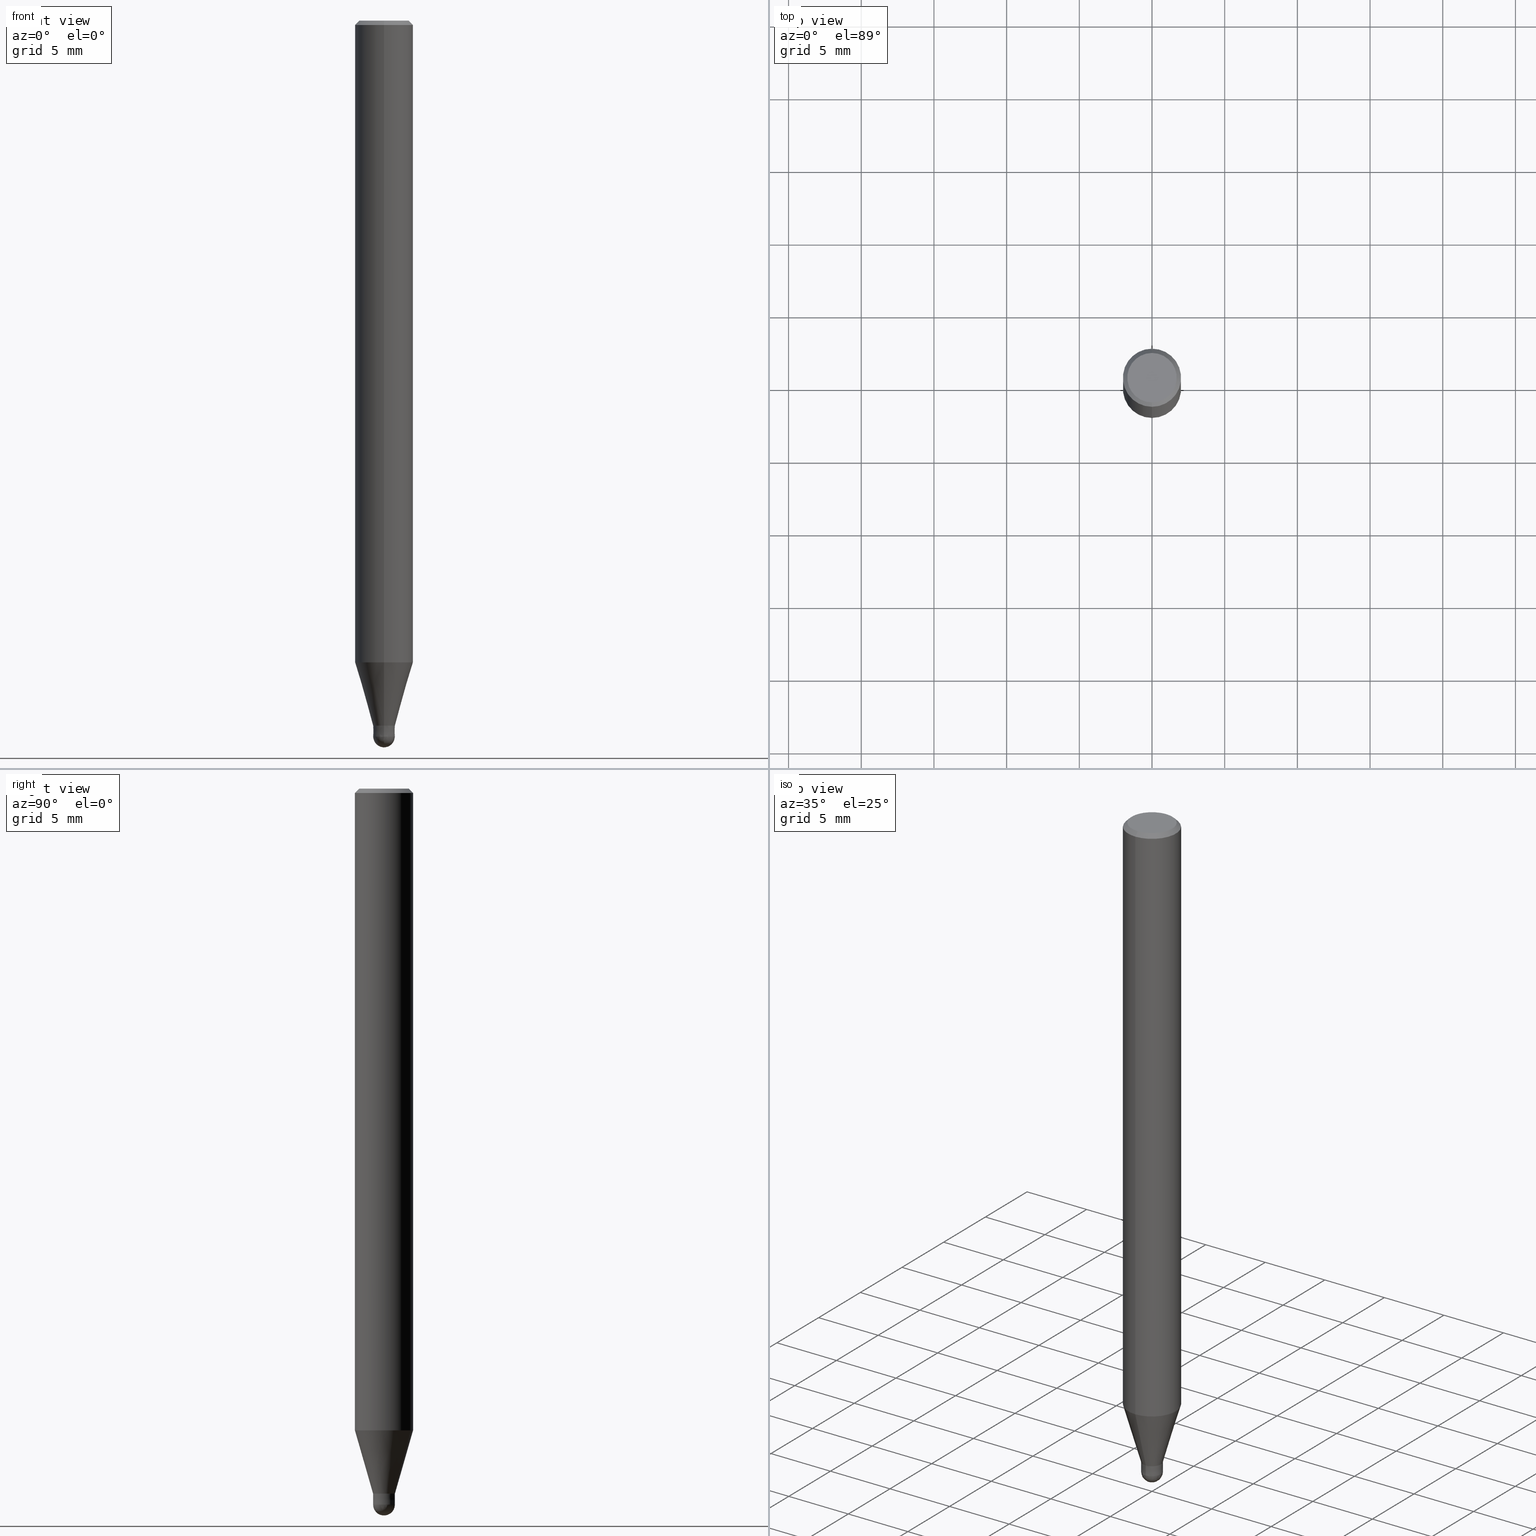
[diagram: canonical four-view strip — front | top / right | iso, engineering-drawing reading convention]
A machine part, canonical four-view strip (front | top / right | iso — engineering-drawing reading convention). The complete STEP part file that produces these views, byte-faithful:
ISO-10303-21;
HEADER;
FILE_DESCRIPTION(('no description'),'unknown implementation level');
FILE_NAME('HSB2015-0150-Huellk.stp','  ',('CIMSOURCE GmbH'),('CADClick - KiM GmbH - www.kimweb.de'),'unknown preprocess','ACIS','unknown authorization');
FILE_SCHEMA(('automotive_design'));
ENDSEC;
DATA;
#1=MECHANICAL_DESIGN_GEOMETRIC_PRESENTATION_REPRESENTATION(' ',(#14,#15,#16,#17,#18,#19,#20,#21,#22,#23,#24,#25,#26,#27,#28,#29,#30,#31,#32,#33,#34,#35,#36,#37,#38,#39,#40,#41,#42,#43,#44,#45,#46,#47,#48,#49,#50,#51,#52,#53,#54,#55,#56,#57,#58,#59,#60,#61,#62,#63,#64,#65,#66),#10);
#2=PRODUCT_DEFINITION_CONTEXT('',#67,'design');
#3=APPLICATION_PROTOCOL_DEFINITION('INTERNATIONAL STANDARD','automotive_design',1994,#67);
#4=PRODUCT_CATEGORY_RELATIONSHIP('NONE','NONE',#68,#69);
#5=SHAPE_DEFINITION_REPRESENTATION(#70,#71);
#6=PRODUCT_DEFINITION_CONTEXT('',#72,'design');
#7=APPLICATION_PROTOCOL_DEFINITION('INTERNATIONAL STANDARD','automotive_design',1994,#72);
#8=PRODUCT_CATEGORY_RELATIONSHIP('NONE','NONE',#73,#74);
#9=SHAPE_DEFINITION_REPRESENTATION(#75,#76);
#10= (GEOMETRIC_REPRESENTATION_CONTEXT(3)GLOBAL_UNCERTAINTY_ASSIGNED_CONTEXT((#79))GLOBAL_UNIT_ASSIGNED_CONTEXT((#81,#82,#83))REPRESENTATION_CONTEXT('NONE','WORKSPACE'));
#14=STYLED_ITEM('',(#85),#86);
#15=STYLED_ITEM('',(#87),#88);
#16=STYLED_ITEM('',(#89),#90);
#17=STYLED_ITEM('',(#91),#92);
#18=STYLED_ITEM('',(#93),#94);
#19=STYLED_ITEM('',(#95),#96);
#20=STYLED_ITEM('',(#97),#98);
#21=STYLED_ITEM('',(#99),#100);
#22=STYLED_ITEM('',(#101),#102);
#23=STYLED_ITEM('',(#103),#104);
#24=STYLED_ITEM('',(#105),#106);
#25=STYLED_ITEM('',(#107),#108);
#26=STYLED_ITEM('',(#109),#110);
#27=STYLED_ITEM('',(#111),#112);
#28=STYLED_ITEM('',(#113),#114);
#29=STYLED_ITEM('',(#115),#116);
#30=STYLED_ITEM('',(#117),#118);
#31=STYLED_ITEM('',(#119),#120);
#32=STYLED_ITEM('',(#121),#122);
#33=STYLED_ITEM('',(#123),#124);
#34=STYLED_ITEM('',(#125),#126);
#35=STYLED_ITEM('',(#127),#128);
#36=STYLED_ITEM('',(#129),#130);
#37=STYLED_ITEM('',(#131),#132);
#38=STYLED_ITEM('',(#133),#134);
#39=STYLED_ITEM('',(#135),#136);
#40=STYLED_ITEM('',(#137),#138);
#41=STYLED_ITEM('',(#139),#140);
#42=STYLED_ITEM('',(#141),#142);
#43=STYLED_ITEM('',(#143),#144);
#44=STYLED_ITEM('',(#145),#146);
#45=STYLED_ITEM('',(#147),#148);
#46=STYLED_ITEM('',(#149),#150);
#47=STYLED_ITEM('',(#151),#152);
#48=STYLED_ITEM('',(#153),#154);
#49=STYLED_ITEM('',(#155),#156);
#50=STYLED_ITEM('',(#157),#158);
#51=STYLED_ITEM('',(#159),#160);
#52=STYLED_ITEM('',(#161),#162);
#53=STYLED_ITEM('',(#163),#164);
#54=STYLED_ITEM('',(#165),#166);
#55=STYLED_ITEM('',(#167),#168);
#56=STYLED_ITEM('',(#169),#170);
#57=STYLED_ITEM('',(#171),#172);
#58=STYLED_ITEM('',(#173),#174);
#59=STYLED_ITEM('',(#175),#176);
#60=STYLED_ITEM('',(#177),#178);
#61=STYLED_ITEM('',(#179),#180);
#62=STYLED_ITEM('',(#181),#182);
#63=STYLED_ITEM('',(#183),#184);
#64=STYLED_ITEM('',(#185),#186);
#65=STYLED_ITEM('',(#187),#188);
#66=STYLED_ITEM('',(#189),#190);
#67=APPLICATION_CONTEXT(' ');
#68=PRODUCT_CATEGORY('part','NONE');
#69=PRODUCT_RELATED_PRODUCT_CATEGORY('detail',' ',(#191));
#70=PRODUCT_DEFINITION_SHAPE('NONE','NONE',#192);
#71=ADVANCED_BREP_SHAPE_REPRESENTATION('1',(#164,#193),#10);
#72=APPLICATION_CONTEXT(' ');
#73=PRODUCT_CATEGORY('part','NONE');
#74=PRODUCT_RELATED_PRODUCT_CATEGORY('detail',' ',(#194));
#75=PRODUCT_DEFINITION_SHAPE('NONE','NONE',#195);
#76=ADVANCED_BREP_SHAPE_REPRESENTATION('2',(#138,#196),#10);
#79=UNCERTAINTY_MEASURE_WITH_UNIT(LENGTH_MEASURE(1.0E-006),#81,'','');
#81= (CONVERSION_BASED_UNIT('MILLIMETRE',#199)LENGTH_UNIT()NAMED_UNIT(#202));
#82= (NAMED_UNIT(#204)PLANE_ANGLE_UNIT()SI_UNIT($,.RADIAN.));
#83= (NAMED_UNIT(#204)SOLID_ANGLE_UNIT()SI_UNIT($,.STERADIAN.));
#85=PRESENTATION_STYLE_ASSIGNMENT((#210));
#86=EDGE_CURVE('',#126,#156,#211,.T.);
#87=PRESENTATION_STYLE_ASSIGNMENT((#212));
#88=ADVANCED_FACE('',(#213),#214,.T.);
#89=PRESENTATION_STYLE_ASSIGNMENT((#215));
#90=ADVANCED_FACE('',(#216),#217,.T.);
#91=PRESENTATION_STYLE_ASSIGNMENT((#218));
#92=EDGE_CURVE('',#174,#120,#219,.T.);
#93=PRESENTATION_STYLE_ASSIGNMENT((#220));
#94=ADVANCED_FACE('',(#221),#222,.T.);
#95=PRESENTATION_STYLE_ASSIGNMENT((#223));
#96=EDGE_CURVE('',#100,#166,#224,.T.);
#97=PRESENTATION_STYLE_ASSIGNMENT((#225));
#98=EDGE_CURVE('',#100,#154,#226,.T.);
#99=PRESENTATION_STYLE_ASSIGNMENT((#227));
#100=VERTEX_POINT('',#228);
#101=PRESENTATION_STYLE_ASSIGNMENT((#229));
#102=EDGE_CURVE('',#166,#184,#230,.T.);
#103=PRESENTATION_STYLE_ASSIGNMENT((#231));
#104=EDGE_CURVE('',#154,#100,#232,.T.);
#105=PRESENTATION_STYLE_ASSIGNMENT((#233));
#106=ADVANCED_FACE('',(#234),#235,.T.);
#107=PRESENTATION_STYLE_ASSIGNMENT((#236));
#108=EDGE_CURVE('',#174,#156,#237,.T.);
#109=PRESENTATION_STYLE_ASSIGNMENT((#238));
#110=EDGE_CURVE('',#130,#158,#239,.T.);
#111=PRESENTATION_STYLE_ASSIGNMENT((#240));
#112=ADVANCED_FACE('',(#241),#242,.T.);
#113=PRESENTATION_STYLE_ASSIGNMENT((#243));
#114=EDGE_CURVE('',#188,#152,#244,.T.);
#115=PRESENTATION_STYLE_ASSIGNMENT((#245));
#116=EDGE_CURVE('',#126,#120,#246,.T.);
#117=PRESENTATION_STYLE_ASSIGNMENT((#247));
#118=EDGE_CURVE('',#158,#130,#248,.T.);
#119=PRESENTATION_STYLE_ASSIGNMENT((#249));
#120=VERTEX_POINT('',#250);
#121=PRESENTATION_STYLE_ASSIGNMENT((#251));
#122=VERTEX_POINT('',#252);
#123=PRESENTATION_STYLE_ASSIGNMENT((#253));
#124=EDGE_CURVE('',#184,#154,#254,.T.);
#125=PRESENTATION_STYLE_ASSIGNMENT((#255));
#126=VERTEX_POINT('',#256);
#127=PRESENTATION_STYLE_ASSIGNMENT((#257));
#128=EDGE_CURVE('',#152,#188,#258,.T.);
#129=PRESENTATION_STYLE_ASSIGNMENT((#259));
#130=VERTEX_POINT('',#260);
#131=PRESENTATION_STYLE_ASSIGNMENT((#261));
#132=ADVANCED_FACE('',(#262),#263,.T.);
#133=PRESENTATION_STYLE_ASSIGNMENT((#264));
#134=ADVANCED_FACE('',(#265),#266,.T.);
#135=PRESENTATION_STYLE_ASSIGNMENT((#267));
#136=EDGE_CURVE('',#152,#142,#268,.T.);
#137=PRESENTATION_STYLE_ASSIGNMENT((#269));
#138=MANIFOLD_SOLID_BREP('2',#270);
#139=PRESENTATION_STYLE_ASSIGNMENT((#271));
#140=EDGE_CURVE('',#142,#122,#272,.T.);
#141=PRESENTATION_STYLE_ASSIGNMENT((#273));
#142=VERTEX_POINT('',#274);
#143=PRESENTATION_STYLE_ASSIGNMENT((#275));
#144=ADVANCED_FACE('',(#276),#277,.T.);
#145=PRESENTATION_STYLE_ASSIGNMENT((#278));
#146=EDGE_CURVE('',#130,#126,#279,.T.);
#147=PRESENTATION_STYLE_ASSIGNMENT((#280));
#148=EDGE_CURVE('',#120,#174,#281,.T.);
#149=PRESENTATION_STYLE_ASSIGNMENT((#282));
#150=ADVANCED_FACE('',(#283),#284,.T.);
#151=PRESENTATION_STYLE_ASSIGNMENT((#285));
#152=VERTEX_POINT('',#286);
#153=PRESENTATION_STYLE_ASSIGNMENT((#287));
#154=VERTEX_POINT('',#288);
#155=PRESENTATION_STYLE_ASSIGNMENT((#289));
#156=VERTEX_POINT('',#290);
#157=PRESENTATION_STYLE_ASSIGNMENT((#291));
#158=VERTEX_POINT('',#292);
#159=PRESENTATION_STYLE_ASSIGNMENT((#293));
#160=EDGE_CURVE('',#156,#126,#294,.T.);
#161=PRESENTATION_STYLE_ASSIGNMENT((#295));
#162=EDGE_CURVE('',#184,#166,#296,.T.);
#163=PRESENTATION_STYLE_ASSIGNMENT((#297));
#164=MANIFOLD_SOLID_BREP('1',#298);
#165=PRESENTATION_STYLE_ASSIGNMENT((#299));
#166=VERTEX_POINT('',#300);
#167=PRESENTATION_STYLE_ASSIGNMENT((#301));
#168=ADVANCED_FACE('',(#302),#303,.T.);
#169=PRESENTATION_STYLE_ASSIGNMENT((#304));
#170=EDGE_CURVE('',#122,#188,#305,.T.);
#171=PRESENTATION_STYLE_ASSIGNMENT((#306));
#172=ADVANCED_FACE('',(#307),#308,.T.);
#173=PRESENTATION_STYLE_ASSIGNMENT((#309));
#174=VERTEX_POINT('',#310);
#175=PRESENTATION_STYLE_ASSIGNMENT((#311));
#176=ADVANCED_FACE('',(#312),#313,.T.);
#177=PRESENTATION_STYLE_ASSIGNMENT((#314));
#178=ADVANCED_FACE('',(#315),#316,.T.);
#179=PRESENTATION_STYLE_ASSIGNMENT((#317));
#180=EDGE_CURVE('',#156,#158,#318,.T.);
#181=PRESENTATION_STYLE_ASSIGNMENT((#319));
#182=EDGE_CURVE('',#122,#142,#320,.T.);
#183=PRESENTATION_STYLE_ASSIGNMENT((#321));
#184=VERTEX_POINT('',#322);
#185=PRESENTATION_STYLE_ASSIGNMENT((#323));
#186=ADVANCED_FACE('',(#324,#325),#326,.T.);
#187=PRESENTATION_STYLE_ASSIGNMENT((#327));
#188=VERTEX_POINT('',#328);
#189=PRESENTATION_STYLE_ASSIGNMENT((#329));
#190=EDGE_CURVE('',#122,#142,#330,.T.);
#191=PRODUCT('1','1','PART-1-DESC',(#331));
#192=PRODUCT_DEFINITION('NONE','NONE',#332,#2);
#193=AXIS2_PLACEMENT_3D('',#333,#334,#335);
#194=PRODUCT('2','2','PART-2-DESC',(#336));
#195=PRODUCT_DEFINITION('NONE','NONE',#337,#6);
#196=AXIS2_PLACEMENT_3D('',#338,#339,#340);
#199=LENGTH_MEASURE_WITH_UNIT(LENGTH_MEASURE(1.0),#341);
#202=DIMENSIONAL_EXPONENTS(1.0,0.0,0.0,0.0,0.0,0.0,0.0);
#204=DIMENSIONAL_EXPONENTS(0.0,0.0,0.0,0.0,0.0,0.0,0.0);
#210=CURVE_STYLE('',#342,POSITIVE_LENGTH_MEASURE(1.0E-006),#343);
#211=CIRCLE('',#344,2.0);
#212=SURFACE_STYLE_USAGE(.BOTH.,#345);
#213=FACE_OUTER_BOUND('',#346,.T.);
#214=CYLINDRICAL_SURFACE('',#347,2.0);
#215=SURFACE_STYLE_USAGE(.BOTH.,#348);
#216=FACE_OUTER_BOUND('',#349,.T.);
#217=CONICAL_SURFACE('',#350,1.37495,0.279268973819818);
#218=CURVE_STYLE('',#351,POSITIVE_LENGTH_MEASURE(1.0E-006),#352);
#219=CIRCLE('',#353,1.7);
#220=SURFACE_STYLE_USAGE(.BOTH.,#354);
#221=FACE_OUTER_BOUND('',#355,.T.);
#222=PLANE('',#356);
#223=CURVE_STYLE('',#357,POSITIVE_LENGTH_MEASURE(1.0E-006),#358);
#224=LINE('',#359,#360);
#225=CURVE_STYLE('',#361,POSITIVE_LENGTH_MEASURE(1.0E-006),#362);
#226=CIRCLE('',#363,1.99995);
#227=POINT_STYLE(' ',#364,POSITIVE_LENGTH_MEASURE(1.0E-006),#365);
#228=CARTESIAN_POINT('',(0.0,1.99995,-44.141));
#229=CURVE_STYLE('',#366,POSITIVE_LENGTH_MEASURE(1.0E-006),#367);
#230=CIRCLE('',#368,0.74995);
#231=CURVE_STYLE('',#369,POSITIVE_LENGTH_MEASURE(1.0E-006),#370);
#232=CIRCLE('',#371,1.99995);
#233=SURFACE_STYLE_USAGE(.BOTH.,#372);
#234=FACE_OUTER_BOUND('',#373,.T.);
#235=SPHERICAL_SURFACE('',#374,0.750000000000001);
#236=CURVE_STYLE('',#375,POSITIVE_LENGTH_MEASURE(1.0E-006),#376);
#237=LINE('',#377,#378);
#238=CURVE_STYLE('',#379,POSITIVE_LENGTH_MEASURE(1.0E-006),#380);
#239=CIRCLE('',#381,2.0);
#240=SURFACE_STYLE_USAGE(.BOTH.,#382);
#241=FACE_OUTER_BOUND('',#383,.T.);
#242=PLANE('',#384);
#243=CURVE_STYLE('',#385,POSITIVE_LENGTH_MEASURE(1.0E-006),#386);
#244=CIRCLE('',#387,0.7499);
#245=CURVE_STYLE('',#388,POSITIVE_LENGTH_MEASURE(1.0E-006),#389);
#246=LINE('',#390,#391);
#247=CURVE_STYLE('',#392,POSITIVE_LENGTH_MEASURE(1.0E-006),#393);
#248=CIRCLE('',#394,2.0);
#249=POINT_STYLE(' ',#395,POSITIVE_LENGTH_MEASURE(1.0E-006),#396);
#250=CARTESIAN_POINT('',(2.08183080149804E-016,-1.7,0.0));
#251=POINT_STYLE(' ',#397,POSITIVE_LENGTH_MEASURE(1.0E-006),#398);
#252=CARTESIAN_POINT('',(9.18454765366783E-017,-0.75,-49.25));
#253=CURVE_STYLE('',#399,POSITIVE_LENGTH_MEASURE(1.0E-006),#400);
#254=LINE('',#401,#402);
#255=POINT_STYLE(' ',#403,POSITIVE_LENGTH_MEASURE(1.0E-006),#404);
#256=CARTESIAN_POINT('',(2.44921270764475E-016,-2.0,-0.299999999999997));
#257=CURVE_STYLE('',#405,POSITIVE_LENGTH_MEASURE(1.0E-006),#406);
#258=CIRCLE('',#407,0.7499);
#259=POINT_STYLE(' ',#408,POSITIVE_LENGTH_MEASURE(1.0E-006),#409);
#260=CARTESIAN_POINT('',(2.44921270764475E-016,-2.0,-44.141));
#261=SURFACE_STYLE_USAGE(.BOTH.,#410);
#262=FACE_OUTER_BOUND('',#411,.T.);
#263=CYLINDRICAL_SURFACE('',#412,2.0);
#264=SURFACE_STYLE_USAGE(.BOTH.,#413);
#265=FACE_OUTER_BOUND('',#414,.T.);
#266=CONICAL_SURFACE('',#415,1.85,0.785398163397453);
#267=CURVE_STYLE('',#416,POSITIVE_LENGTH_MEASURE(1.0E-006),#417);
#268=LINE('',#418,#419);
#269=SURFACE_STYLE_USAGE(.BOTH.,#420);
#270=CLOSED_SHELL('',(#106,#178,#94,#168,#144));
#271=CURVE_STYLE('',#421,POSITIVE_LENGTH_MEASURE(1.0E-006),#422);
#272=CIRCLE('',#423,0.75);
#273=POINT_STYLE(' ',#424,POSITIVE_LENGTH_MEASURE(1.0E-006),#425);
#274=CARTESIAN_POINT('',(0.0,0.75,-49.25));
#275=SURFACE_STYLE_USAGE(.BOTH.,#426);
#276=FACE_OUTER_BOUND('',#427,.T.);
#277=SPHERICAL_SURFACE('',#428,0.750000000000001);
#278=CURVE_STYLE('',#429,POSITIVE_LENGTH_MEASURE(1.0E-006),#430);
#279=LINE('',#431,#432);
#280=CURVE_STYLE('',#433,POSITIVE_LENGTH_MEASURE(1.0E-006),#434);
#281=CIRCLE('',#435,1.7);
#282=SURFACE_STYLE_USAGE(.BOTH.,#436);
#283=FACE_OUTER_BOUND('',#437,.T.);
#284=CONICAL_SURFACE('',#438,1.85,0.785398163397453);
#285=POINT_STYLE(' ',#439,POSITIVE_LENGTH_MEASURE(1.0E-006),#440);
#286=CARTESIAN_POINT('',(0.0,0.7499,-48.5));
#287=POINT_STYLE(' ',#441,POSITIVE_LENGTH_MEASURE(1.0E-006),#442);
#288=CARTESIAN_POINT('',(2.44915147732706E-016,-1.99995,-44.141));
#289=POINT_STYLE(' ',#443,POSITIVE_LENGTH_MEASURE(1.0E-006),#444);
#290=CARTESIAN_POINT('',(0.0,2.0,-0.299999999999997));
#291=POINT_STYLE(' ',#445,POSITIVE_LENGTH_MEASURE(1.0E-006),#446);
#292=CARTESIAN_POINT('',(0.0,2.0,-44.141));
#293=CURVE_STYLE('',#447,POSITIVE_LENGTH_MEASURE(1.0E-006),#448);
#294=CIRCLE('',#449,2.0);
#295=CURVE_STYLE('',#450,POSITIVE_LENGTH_MEASURE(1.0E-006),#451);
#296=CIRCLE('',#452,0.74995);
#297=SURFACE_STYLE_USAGE(.BOTH.,#453);
#298=CLOSED_SHELL('',(#172,#132,#150,#186,#176,#134,#88,#90,#112));
#299=POINT_STYLE(' ',#454,POSITIVE_LENGTH_MEASURE(1.0E-006),#455);
#300=CARTESIAN_POINT('',(0.0,0.74995,-48.5));
#301=SURFACE_STYLE_USAGE(.BOTH.,#456);
#302=FACE_OUTER_BOUND('',#457,.T.);
#303=CONICAL_SURFACE('',#458,0.74995,0.000133333332543343);
#304=CURVE_STYLE('',#459,POSITIVE_LENGTH_MEASURE(1.0E-006),#460);
#305=LINE('',#461,#462);
#306=SURFACE_STYLE_USAGE(.BOTH.,#463);
#307=FACE_OUTER_BOUND('',#464,.T.);
#308=CONICAL_SURFACE('',#465,1.37495,0.279268973819818);
#309=POINT_STYLE(' ',#466,POSITIVE_LENGTH_MEASURE(1.0E-006),#467);
#310=CARTESIAN_POINT('',(0.0,1.7,0.0));
#311=SURFACE_STYLE_USAGE(.BOTH.,#468);
#312=FACE_OUTER_BOUND('',#469,.T.);
#313=PLANE('',#470);
#314=SURFACE_STYLE_USAGE(.BOTH.,#471);
#315=FACE_OUTER_BOUND('',#472,.T.);
#316=CONICAL_SURFACE('',#473,0.74995,0.000133333332543343);
#317=CURVE_STYLE('',#474,POSITIVE_LENGTH_MEASURE(1.0E-006),#475);
#318=LINE('',#476,#477);
#319=CURVE_STYLE('',#478,POSITIVE_LENGTH_MEASURE(1.0E-006),#479);
#320=CIRCLE('',#480,0.750000000000001);
#321=POINT_STYLE(' ',#481,POSITIVE_LENGTH_MEASURE(1.0E-006),#482);
#322=CARTESIAN_POINT('',(9.18393535049092E-017,-0.74995,-48.5));
#323=SURFACE_STYLE_USAGE(.BOTH.,#483);
#324=FACE_OUTER_BOUND('',#484,.T.);
#325=FACE_BOUND('',#485,.T.);
#326=PLANE('',#486);
#327=POINT_STYLE(' ',#487,POSITIVE_LENGTH_MEASURE(1.0E-006),#488);
#328=CARTESIAN_POINT('',(9.18332304731401E-017,-0.7499,-48.5));
#329=CURVE_STYLE('',#489,POSITIVE_LENGTH_MEASURE(1.0E-006),#490);
#330=CIRCLE('',#491,0.75);
#331=PRODUCT_CONTEXT('',#67,'mechanical');
#332=PRODUCT_DEFINITION_FORMATION_WITH_SPECIFIED_SOURCE(' ','NONE',#191,.NOT_KNOWN.);
#333=CARTESIAN_POINT('',(0.0,0.0,0.0));
#334=DIRECTION('',(0.0,0.0,1.0));
#335=DIRECTION('',(1.0,0.0,0.0));
#336=PRODUCT_CONTEXT('',#72,'mechanical');
#337=PRODUCT_DEFINITION_FORMATION_WITH_SPECIFIED_SOURCE(' ','NONE',#194,.NOT_KNOWN.);
#338=CARTESIAN_POINT('',(0.0,0.0,0.0));
#339=DIRECTION('',(0.0,0.0,1.0));
#340=DIRECTION('',(1.0,0.0,0.0));
#341= (NAMED_UNIT(#202)LENGTH_UNIT()SI_UNIT(.MILLI.,.METRE.));
#342=DRAUGHTING_PRE_DEFINED_CURVE_FONT('continuous');
#343=COLOUR_RGB('',0.498039215803146,0.498039215803146,0.498039215803146);
#344=AXIS2_PLACEMENT_3D('',#493,#494,#495);
#345=SURFACE_SIDE_STYLE('',(#496));
#346=EDGE_LOOP('',(#497,#498,#499,#500));
#347=AXIS2_PLACEMENT_3D('',#501,#502,#503);
#348=SURFACE_SIDE_STYLE('',(#504));
#349=EDGE_LOOP('',(#505,#506,#507,#508));
#350=AXIS2_PLACEMENT_3D('',#509,#510,#511);
#351=DRAUGHTING_PRE_DEFINED_CURVE_FONT('continuous');
#352=COLOUR_RGB('',0.498039215803146,0.498039215803146,0.498039215803146);
#353=AXIS2_PLACEMENT_3D('',#512,#513,#514);
#354=SURFACE_SIDE_STYLE('',(#515));
#355=EDGE_LOOP('',(#516,#517));
#356=AXIS2_PLACEMENT_3D('',#518,#519,#520);
#357=DRAUGHTING_PRE_DEFINED_CURVE_FONT('continuous');
#358=COLOUR_RGB('',0.498039215803146,0.498039215803146,0.498039215803146);
#359=CARTESIAN_POINT('',(-1.68377250618808E-016,1.37495,-46.3205));
#360=VECTOR('',#521,1.0);
#361=DRAUGHTING_PRE_DEFINED_CURVE_FONT('continuous');
#362=COLOUR_RGB('',0.498039215803146,0.498039215803146,0.498039215803146);
#363=AXIS2_PLACEMENT_3D('',#522,#523,#524);
#364=PRE_DEFINED_MARKER('');
#365=COLOUR_RGB('',0.498039215803146,0.498039215803146,0.498039215803146);
#366=DRAUGHTING_PRE_DEFINED_CURVE_FONT('continuous');
#367=COLOUR_RGB('',0.498039215803146,0.498039215803146,0.498039215803146);
#368=AXIS2_PLACEMENT_3D('',#525,#526,#527);
#369=DRAUGHTING_PRE_DEFINED_CURVE_FONT('continuous');
#370=COLOUR_RGB('',0.498039215803146,0.498039215803146,0.498039215803146);
#371=AXIS2_PLACEMENT_3D('',#528,#529,#530);
#372=SURFACE_SIDE_STYLE('',(#531));
#373=EDGE_LOOP('',(#532,#533));
#374=AXIS2_PLACEMENT_3D('',#534,#535,#536);
#375=DRAUGHTING_PRE_DEFINED_CURVE_FONT('continuous');
#376=COLOUR_RGB('',0.498039215803146,0.498039215803146,0.498039215803146);
#377=CARTESIAN_POINT('',(-2.2655217545714E-016,1.85,-0.149999999999999));
#378=VECTOR('',#537,1.0);
#379=DRAUGHTING_PRE_DEFINED_CURVE_FONT('continuous');
#380=COLOUR_RGB('',0.498039215803146,0.498039215803146,0.498039215803146);
#381=AXIS2_PLACEMENT_3D('',#538,#539,#540);
#382=SURFACE_SIDE_STYLE('',(#541));
#383=EDGE_LOOP('',(#542,#543));
#384=AXIS2_PLACEMENT_3D('',#544,#545,#546);
#385=DRAUGHTING_PRE_DEFINED_CURVE_FONT('continuous');
#386=COLOUR_RGB('',0.800000011920929,0.800000011920929,0.800000011920929);
#387=AXIS2_PLACEMENT_3D('',#547,#548,#549);
#388=DRAUGHTING_PRE_DEFINED_CURVE_FONT('continuous');
#389=COLOUR_RGB('',0.498039215803146,0.498039215803146,0.498039215803146);
#390=CARTESIAN_POINT('',(2.2655217545714E-016,-1.85,-0.149999999999999));
#391=VECTOR('',#550,1.0);
#392=DRAUGHTING_PRE_DEFINED_CURVE_FONT('continuous');
#393=COLOUR_RGB('',0.498039215803146,0.498039215803146,0.498039215803146);
#394=AXIS2_PLACEMENT_3D('',#551,#552,#553);
#395=PRE_DEFINED_MARKER('');
#396=COLOUR_RGB('',0.498039215803146,0.498039215803146,0.498039215803146);
#397=PRE_DEFINED_MARKER('');
#398=COLOUR_RGB('',0.800000011920929,0.800000011920929,0.800000011920929);
#399=DRAUGHTING_PRE_DEFINED_CURVE_FONT('continuous');
#400=COLOUR_RGB('',0.498039215803146,0.498039215803146,0.498039215803146);
#401=CARTESIAN_POINT('',(1.68377250618808E-016,-1.37495,-46.3205));
#402=VECTOR('',#554,1.0);
#403=PRE_DEFINED_MARKER('');
#404=COLOUR_RGB('',0.498039215803146,0.498039215803146,0.498039215803146);
#405=DRAUGHTING_PRE_DEFINED_CURVE_FONT('continuous');
#406=COLOUR_RGB('',0.800000011920929,0.800000011920929,0.800000011920929);
#407=AXIS2_PLACEMENT_3D('',#555,#556,#557);
#408=PRE_DEFINED_MARKER('');
#409=COLOUR_RGB('',0.498039215803146,0.498039215803146,0.498039215803146);
#410=SURFACE_SIDE_STYLE('',(#558));
#411=EDGE_LOOP('',(#559,#560,#561,#562));
#412=AXIS2_PLACEMENT_3D('',#563,#564,#565);
#413=SURFACE_SIDE_STYLE('',(#566));
#414=EDGE_LOOP('',(#567,#568,#569,#570));
#415=AXIS2_PLACEMENT_3D('',#571,#572,#573);
#416=DRAUGHTING_PRE_DEFINED_CURVE_FONT('continuous');
#417=COLOUR_RGB('',0.800000011920929,0.800000011920929,0.800000011920929);
#418=CARTESIAN_POINT('',(-9.18393535049091E-017,0.74995,-48.875));
#419=VECTOR('',#574,1.0);
#420=SURFACE_SIDE_STYLE('',(#575));
#421=DRAUGHTING_PRE_DEFINED_CURVE_FONT('continuous');
#422=COLOUR_RGB('',0.800000011920929,0.800000011920929,0.800000011920929);
#423=AXIS2_PLACEMENT_3D('',#576,#577,#578);
#424=PRE_DEFINED_MARKER('');
#425=COLOUR_RGB('',0.800000011920929,0.800000011920929,0.800000011920929);
#426=SURFACE_SIDE_STYLE('',(#579));
#427=EDGE_LOOP('',(#580,#581));
#428=AXIS2_PLACEMENT_3D('',#582,#583,#584);
#429=DRAUGHTING_PRE_DEFINED_CURVE_FONT('continuous');
#430=COLOUR_RGB('',0.498039215803146,0.498039215803146,0.498039215803146);
#431=CARTESIAN_POINT('',(2.44921270764475E-016,-2.0,-22.2205));
#432=VECTOR('',#585,1.0);
#433=DRAUGHTING_PRE_DEFINED_CURVE_FONT('continuous');
#434=COLOUR_RGB('',0.498039215803146,0.498039215803146,0.498039215803146);
#435=AXIS2_PLACEMENT_3D('',#586,#587,#588);
#436=SURFACE_SIDE_STYLE('',(#589));
#437=EDGE_LOOP('',(#590,#591,#592,#593));
#438=AXIS2_PLACEMENT_3D('',#594,#595,#596);
#439=PRE_DEFINED_MARKER('');
#440=COLOUR_RGB('',0.800000011920929,0.800000011920929,0.800000011920929);
#441=PRE_DEFINED_MARKER('');
#442=COLOUR_RGB('',0.498039215803146,0.498039215803146,0.498039215803146);
#443=PRE_DEFINED_MARKER('');
#444=COLOUR_RGB('',0.498039215803146,0.498039215803146,0.498039215803146);
#445=PRE_DEFINED_MARKER('');
#446=COLOUR_RGB('',0.498039215803146,0.498039215803146,0.498039215803146);
#447=DRAUGHTING_PRE_DEFINED_CURVE_FONT('continuous');
#448=COLOUR_RGB('',0.498039215803146,0.498039215803146,0.498039215803146);
#449=AXIS2_PLACEMENT_3D('',#597,#598,#599);
#450=DRAUGHTING_PRE_DEFINED_CURVE_FONT('continuous');
#451=COLOUR_RGB('',0.498039215803146,0.498039215803146,0.498039215803146);
#452=AXIS2_PLACEMENT_3D('',#600,#601,#602);
#453=SURFACE_SIDE_STYLE('',(#603));
#454=PRE_DEFINED_MARKER('');
#455=COLOUR_RGB('',0.498039215803146,0.498039215803146,0.498039215803146);
#456=SURFACE_SIDE_STYLE('',(#604));
#457=EDGE_LOOP('',(#605,#606,#607,#608));
#458=AXIS2_PLACEMENT_3D('',#609,#610,#611);
#459=DRAUGHTING_PRE_DEFINED_CURVE_FONT('continuous');
#460=COLOUR_RGB('',0.800000011920929,0.800000011920929,0.800000011920929);
#461=CARTESIAN_POINT('',(9.18393535049092E-017,-0.74995,-48.875));
#462=VECTOR('',#612,1.0);
#463=SURFACE_SIDE_STYLE('',(#613));
#464=EDGE_LOOP('',(#614,#615,#616,#617));
#465=AXIS2_PLACEMENT_3D('',#618,#619,#620);
#466=PRE_DEFINED_MARKER('');
#467=COLOUR_RGB('',0.498039215803146,0.498039215803146,0.498039215803146);
#468=SURFACE_SIDE_STYLE('',(#621));
#469=EDGE_LOOP('',(#622,#623));
#470=AXIS2_PLACEMENT_3D('',#624,#625,#626);
#471=SURFACE_SIDE_STYLE('',(#627));
#472=EDGE_LOOP('',(#628,#629,#630,#631));
#473=AXIS2_PLACEMENT_3D('',#632,#633,#634);
#474=DRAUGHTING_PRE_DEFINED_CURVE_FONT('continuous');
#475=COLOUR_RGB('',0.498039215803146,0.498039215803146,0.498039215803146);
#476=CARTESIAN_POINT('',(-2.44921270764475E-016,2.0,-22.2205));
#477=VECTOR('',#635,1.0);
#478=DRAUGHTING_PRE_DEFINED_CURVE_FONT('continuous');
#479=COLOUR_RGB('',0.800000011920929,0.800000011920929,0.800000011920929);
#480=AXIS2_PLACEMENT_3D('',#636,#637,#638);
#481=PRE_DEFINED_MARKER('');
#482=COLOUR_RGB('',0.498039215803146,0.498039215803146,0.498039215803146);
#483=SURFACE_SIDE_STYLE('',(#639));
#484=EDGE_LOOP('',(#640,#641));
#485=EDGE_LOOP('',(#642,#643));
#486=AXIS2_PLACEMENT_3D('',#644,#645,#646);
#487=PRE_DEFINED_MARKER('');
#488=COLOUR_RGB('',0.800000011920929,0.800000011920929,0.800000011920929);
#489=DRAUGHTING_PRE_DEFINED_CURVE_FONT('continuous');
#490=COLOUR_RGB('',0.800000011920929,0.800000011920929,0.800000011920929);
#491=AXIS2_PLACEMENT_3D('',#647,#648,#649);
#493=CARTESIAN_POINT('',(0.0,0.0,-0.299999999999997));
#494=DIRECTION('',(0.0,0.0,-1.0));
#495=DIRECTION('',(0.0,1.0,0.0));
#496=SURFACE_STYLE_FILL_AREA(#650);
#497=ORIENTED_EDGE('',*,*,#180,.T.);
#498=ORIENTED_EDGE('',*,*,#110,.F.);
#499=ORIENTED_EDGE('',*,*,#146,.T.);
#500=ORIENTED_EDGE('',*,*,#86,.T.);
#501=CARTESIAN_POINT('',(0.0,0.0,-22.2205));
#502=DIRECTION('',(-0.0,-0.0,1.0));
#503=DIRECTION('',(0.0,1.0,0.0));
#504=SURFACE_STYLE_FILL_AREA(#651);
#505=ORIENTED_EDGE('',*,*,#96,.T.);
#506=ORIENTED_EDGE('',*,*,#162,.F.);
#507=ORIENTED_EDGE('',*,*,#124,.T.);
#508=ORIENTED_EDGE('',*,*,#104,.T.);
#509=CARTESIAN_POINT('',(0.0,0.0,-46.3205));
#510=DIRECTION('',(-0.0,-0.0,1.0));
#511=DIRECTION('',(0.0,1.0,0.0));
#512=CARTESIAN_POINT('',(0.0,0.0,0.0));
#513=DIRECTION('',(0.0,0.0,-1.0));
#514=DIRECTION('',(0.0,1.0,0.0));
#515=SURFACE_STYLE_FILL_AREA(#652);
#516=ORIENTED_EDGE('',*,*,#128,.F.);
#517=ORIENTED_EDGE('',*,*,#114,.F.);
#518=CARTESIAN_POINT('',(0.0,0.37495,-48.5));
#519=DIRECTION('',(-0.0,0.0,1.0));
#520=DIRECTION('',(0.0,-1.0,0.0));
#521=DIRECTION('',(3.375664374138E-017,-0.27565301809855,-0.961257204713265));
#522=CARTESIAN_POINT('',(0.0,0.0,-44.141));
#523=DIRECTION('',(0.0,0.0,-1.0));
#524=DIRECTION('',(0.0,1.0,0.0));
#525=CARTESIAN_POINT('',(0.0,0.0,-48.5));
#526=DIRECTION('',(0.0,0.0,-1.0));
#527=DIRECTION('',(0.0,1.0,0.0));
#528=CARTESIAN_POINT('',(0.0,0.0,-44.141));
#529=DIRECTION('',(0.0,0.0,-1.0));
#530=DIRECTION('',(0.0,1.0,0.0));
#531=SURFACE_STYLE_FILL_AREA(#653);
#532=ORIENTED_EDGE('',*,*,#182,.F.);
#533=ORIENTED_EDGE('',*,*,#190,.T.);
#534=CARTESIAN_POINT('',(0.0,0.0,-49.25));
#535=DIRECTION('',(0.0,1.0,0.0));
#536=DIRECTION('',(0.0,0.0,-1.0));
#537=DIRECTION('',(-8.6592745707194E-017,0.707106781186551,-0.707106781186544));
#538=CARTESIAN_POINT('',(0.0,0.0,-44.141));
#539=DIRECTION('',(0.0,0.0,-1.0));
#540=DIRECTION('',(0.0,1.0,0.0));
#541=SURFACE_STYLE_FILL_AREA(#654);
#542=ORIENTED_EDGE('',*,*,#102,.T.);
#543=ORIENTED_EDGE('',*,*,#162,.T.);
#544=CARTESIAN_POINT('',(0.0,0.374975,-48.5));
#545=DIRECTION('',(0.0,0.0,-1.0));
#546=DIRECTION('',(0.0,1.0,0.0));
#547=CARTESIAN_POINT('',(0.0,0.0,-48.5));
#548=DIRECTION('',(0.0,0.0,-1.0));
#549=DIRECTION('',(0.0,1.0,0.0));
#550=DIRECTION('',(-8.6592745707194E-017,0.707106781186551,0.707106781186544));
#551=CARTESIAN_POINT('',(0.0,0.0,-44.141));
#552=DIRECTION('',(0.0,0.0,-1.0));
#553=DIRECTION('',(0.0,1.0,0.0));
#554=DIRECTION('',(3.375664374138E-017,-0.27565301809855,0.961257204713265));
#555=CARTESIAN_POINT('',(0.0,0.0,-48.5));
#556=DIRECTION('',(0.0,0.0,-1.0));
#557=DIRECTION('',(0.0,1.0,0.0));
#558=SURFACE_STYLE_FILL_AREA(#655);
#559=ORIENTED_EDGE('',*,*,#180,.F.);
#560=ORIENTED_EDGE('',*,*,#160,.T.);
#561=ORIENTED_EDGE('',*,*,#146,.F.);
#562=ORIENTED_EDGE('',*,*,#118,.F.);
#563=CARTESIAN_POINT('',(0.0,0.0,-22.2205));
#564=DIRECTION('',(-0.0,-0.0,1.0));
#565=DIRECTION('',(0.0,1.0,0.0));
#566=SURFACE_STYLE_FILL_AREA(#656);
#567=ORIENTED_EDGE('',*,*,#108,.T.);
#568=ORIENTED_EDGE('',*,*,#86,.F.);
#569=ORIENTED_EDGE('',*,*,#116,.T.);
#570=ORIENTED_EDGE('',*,*,#148,.T.);
#571=CARTESIAN_POINT('',(0.0,0.0,-0.149999999999999));
#572=DIRECTION('',(0.0,-0.0,-1.0));
#573=DIRECTION('',(0.0,1.0,0.0));
#574=DIRECTION('',(-1.63280845725095E-020,0.000133333332148282,-0.999999991111111));
#575=SURFACE_STYLE_FILL_AREA(#657);
#576=CARTESIAN_POINT('',(0.0,0.0,-49.25));
#577=DIRECTION('',(0.0,0.0,-1.0));
#578=DIRECTION('',(0.0,1.0,0.0));
#579=SURFACE_STYLE_FILL_AREA(#658);
#580=ORIENTED_EDGE('',*,*,#182,.T.);
#581=ORIENTED_EDGE('',*,*,#140,.T.);
#582=CARTESIAN_POINT('',(0.0,0.0,-49.25));
#583=DIRECTION('',(0.0,1.0,0.0));
#584=DIRECTION('',(0.0,0.0,-1.0));
#585=DIRECTION('',(-0.0,-0.0,1.0));
#586=CARTESIAN_POINT('',(0.0,0.0,0.0));
#587=DIRECTION('',(0.0,0.0,-1.0));
#588=DIRECTION('',(0.0,1.0,0.0));
#589=SURFACE_STYLE_FILL_AREA(#659);
#590=ORIENTED_EDGE('',*,*,#108,.F.);
#591=ORIENTED_EDGE('',*,*,#92,.T.);
#592=ORIENTED_EDGE('',*,*,#116,.F.);
#593=ORIENTED_EDGE('',*,*,#160,.F.);
#594=CARTESIAN_POINT('',(0.0,0.0,-0.149999999999999));
#595=DIRECTION('',(0.0,-0.0,-1.0));
#596=DIRECTION('',(0.0,1.0,0.0));
#597=CARTESIAN_POINT('',(0.0,0.0,-0.299999999999997));
#598=DIRECTION('',(0.0,0.0,-1.0));
#599=DIRECTION('',(0.0,1.0,0.0));
#600=CARTESIAN_POINT('',(0.0,0.0,-48.5));
#601=DIRECTION('',(0.0,0.0,-1.0));
#602=DIRECTION('',(0.0,1.0,0.0));
#603=SURFACE_STYLE_FILL_AREA(#660);
#604=SURFACE_STYLE_FILL_AREA(#661);
#605=ORIENTED_EDGE('',*,*,#136,.T.);
#606=ORIENTED_EDGE('',*,*,#190,.F.);
#607=ORIENTED_EDGE('',*,*,#170,.T.);
#608=ORIENTED_EDGE('',*,*,#114,.T.);
#609=CARTESIAN_POINT('',(0.0,0.0,-48.875));
#610=DIRECTION('',(0.0,-0.0,-1.0));
#611=DIRECTION('',(0.0,1.0,0.0));
#612=DIRECTION('',(-1.63280845725095E-020,0.000133333332148282,0.999999991111111));
#613=SURFACE_STYLE_FILL_AREA(#662);
#614=ORIENTED_EDGE('',*,*,#96,.F.);
#615=ORIENTED_EDGE('',*,*,#98,.T.);
#616=ORIENTED_EDGE('',*,*,#124,.F.);
#617=ORIENTED_EDGE('',*,*,#102,.F.);
#618=CARTESIAN_POINT('',(0.0,0.0,-46.3205));
#619=DIRECTION('',(-0.0,-0.0,1.0));
#620=DIRECTION('',(0.0,1.0,0.0));
#621=SURFACE_STYLE_FILL_AREA(#663);
#622=ORIENTED_EDGE('',*,*,#92,.F.);
#623=ORIENTED_EDGE('',*,*,#148,.F.);
#624=CARTESIAN_POINT('',(0.0,0.85,0.0));
#625=DIRECTION('',(-0.0,0.0,1.0));
#626=DIRECTION('',(0.0,-1.0,0.0));
#627=SURFACE_STYLE_FILL_AREA(#664);
#628=ORIENTED_EDGE('',*,*,#136,.F.);
#629=ORIENTED_EDGE('',*,*,#128,.T.);
#630=ORIENTED_EDGE('',*,*,#170,.F.);
#631=ORIENTED_EDGE('',*,*,#140,.F.);
#632=CARTESIAN_POINT('',(0.0,0.0,-48.875));
#633=DIRECTION('',(0.0,-0.0,-1.0));
#634=DIRECTION('',(0.0,1.0,0.0));
#635=DIRECTION('',(0.0,0.0,-1.0));
#636=CARTESIAN_POINT('',(0.0,0.0,-49.25));
#637=DIRECTION('',(1.0,0.0,1.22460635382238E-016));
#638=DIRECTION('',(-1.22460635382238E-016,0.0,1.0));
#639=SURFACE_STYLE_FILL_AREA(#665);
#640=ORIENTED_EDGE('',*,*,#118,.T.);
#641=ORIENTED_EDGE('',*,*,#110,.T.);
#642=ORIENTED_EDGE('',*,*,#98,.F.);
#643=ORIENTED_EDGE('',*,*,#104,.F.);
#644=CARTESIAN_POINT('',(0.0,1.0,-44.141));
#645=DIRECTION('',(0.0,0.0,-1.0));
#646=DIRECTION('',(0.0,1.0,0.0));
#647=CARTESIAN_POINT('',(0.0,0.0,-49.25));
#648=DIRECTION('',(0.0,0.0,-1.0));
#649=DIRECTION('',(0.0,1.0,0.0));
#650=FILL_AREA_STYLE('',(#666));
#651=FILL_AREA_STYLE('',(#667));
#652=FILL_AREA_STYLE('',(#668));
#653=FILL_AREA_STYLE('',(#669));
#654=FILL_AREA_STYLE('',(#670));
#655=FILL_AREA_STYLE('',(#671));
#656=FILL_AREA_STYLE('',(#672));
#657=FILL_AREA_STYLE('',(#673));
#658=FILL_AREA_STYLE('',(#674));
#659=FILL_AREA_STYLE('',(#675));
#660=FILL_AREA_STYLE('',(#676));
#661=FILL_AREA_STYLE('',(#677));
#662=FILL_AREA_STYLE('',(#678));
#663=FILL_AREA_STYLE('',(#679));
#664=FILL_AREA_STYLE('',(#680));
#665=FILL_AREA_STYLE('',(#681));
#666=FILL_AREA_STYLE_COLOUR('',#682);
#667=FILL_AREA_STYLE_COLOUR('',#683);
#668=FILL_AREA_STYLE_COLOUR('',#684);
#669=FILL_AREA_STYLE_COLOUR('',#685);
#670=FILL_AREA_STYLE_COLOUR('',#686);
#671=FILL_AREA_STYLE_COLOUR('',#687);
#672=FILL_AREA_STYLE_COLOUR('',#688);
#673=FILL_AREA_STYLE_COLOUR('',#689);
#674=FILL_AREA_STYLE_COLOUR('',#690);
#675=FILL_AREA_STYLE_COLOUR('',#691);
#676=FILL_AREA_STYLE_COLOUR('',#692);
#677=FILL_AREA_STYLE_COLOUR('',#693);
#678=FILL_AREA_STYLE_COLOUR('',#694);
#679=FILL_AREA_STYLE_COLOUR('',#695);
#680=FILL_AREA_STYLE_COLOUR('',#696);
#681=FILL_AREA_STYLE_COLOUR('',#697);
#682=COLOUR_RGB('',0.498039215803146,0.498039215803146,0.498039215803146);
#683=COLOUR_RGB('',0.498039215803146,0.498039215803146,0.498039215803146);
#684=COLOUR_RGB('',0.800000011920929,0.800000011920929,0.800000011920929);
#685=COLOUR_RGB('',0.800000011920929,0.800000011920929,0.800000011920929);
#686=COLOUR_RGB('',0.498039215803146,0.498039215803146,0.498039215803146);
#687=COLOUR_RGB('',0.498039215803146,0.498039215803146,0.498039215803146);
#688=COLOUR_RGB('',0.498039215803146,0.498039215803146,0.498039215803146);
#689=COLOUR_RGB('',0.800000011920929,0.800000011920929,0.800000011920929);
#690=COLOUR_RGB('',0.800000011920929,0.800000011920929,0.800000011920929);
#691=COLOUR_RGB('',0.498039215803146,0.498039215803146,0.498039215803146);
#692=COLOUR_RGB('',0.498039215803146,0.498039215803146,0.498039215803146);
#693=COLOUR_RGB('',0.800000011920929,0.800000011920929,0.800000011920929);
#694=COLOUR_RGB('',0.498039215803146,0.498039215803146,0.498039215803146);
#695=COLOUR_RGB('',0.498039215803146,0.498039215803146,0.498039215803146);
#696=COLOUR_RGB('',0.800000011920929,0.800000011920929,0.800000011920929);
#697=COLOUR_RGB('',0.498039215803146,0.498039215803146,0.498039215803146);
#698=AXIS2_PLACEMENT_3D('PCS',#699,#700,#701);
#699=CARTESIAN_POINT('',(0.0,0.0,0.0));
#700=DIRECTION('',(0.0,0.0,1.0));
#701=DIRECTION('',(1.0,0.0,0.0));
#702=AXIS2_PLACEMENT_3D('CIP',#703,#704,#705);
#703=CARTESIAN_POINT('',(0.0,0.0,-50.0));
#704=DIRECTION('',(0.0,0.0,1.0));
#705=DIRECTION('',(1.0,0.0,0.0));
#706=AXIS2_PLACEMENT_3D('CRP',#707,#708,#709);
#707=CARTESIAN_POINT('',(-0.75,0.0,-50.0));
#708=DIRECTION('',(0.0,0.0,1.0));
#709=DIRECTION('',(1.0,0.0,0.0));
#710=AXIS2_PLACEMENT_3D('MCS',#711,#712,#713);
#711=CARTESIAN_POINT('',(0.0,0.0,-44.141));
#712=DIRECTION('',(0.0,0.0,1.0));
#713=DIRECTION('',(1.0,0.0,0.0));
#714=CONSTRUCTIVE_GEOMETRY_REPRESENTATION_RELATIONSHIP('coordinate systems',$,#71,#715);
#715=CONSTRUCTIVE_GEOMETRY_REPRESENTATION('coordinate systems',(#698,#702,#706,#710),#10);
ENDSEC;
END-ISO-10303-21;
